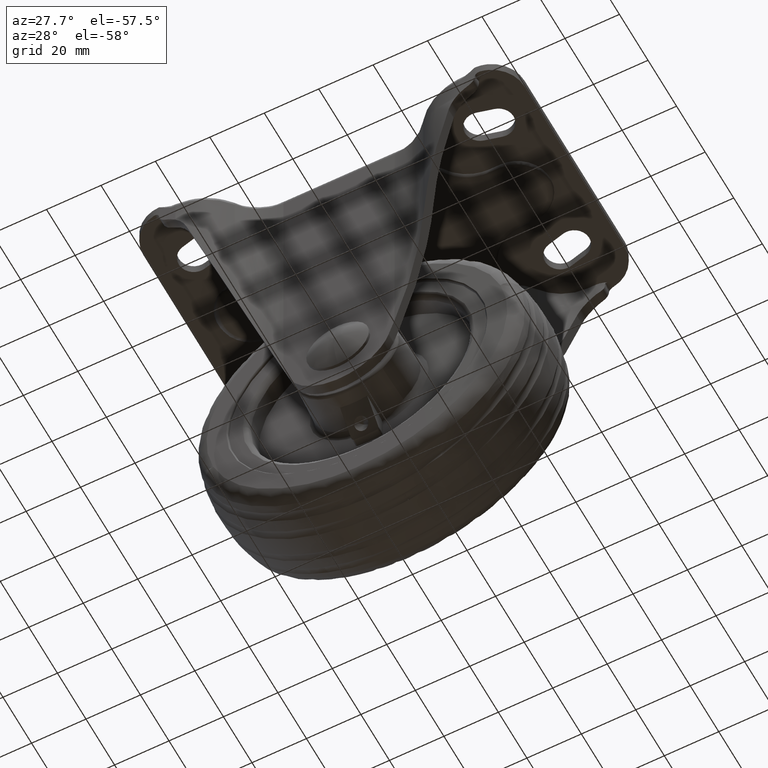
[diagram: clean part render]
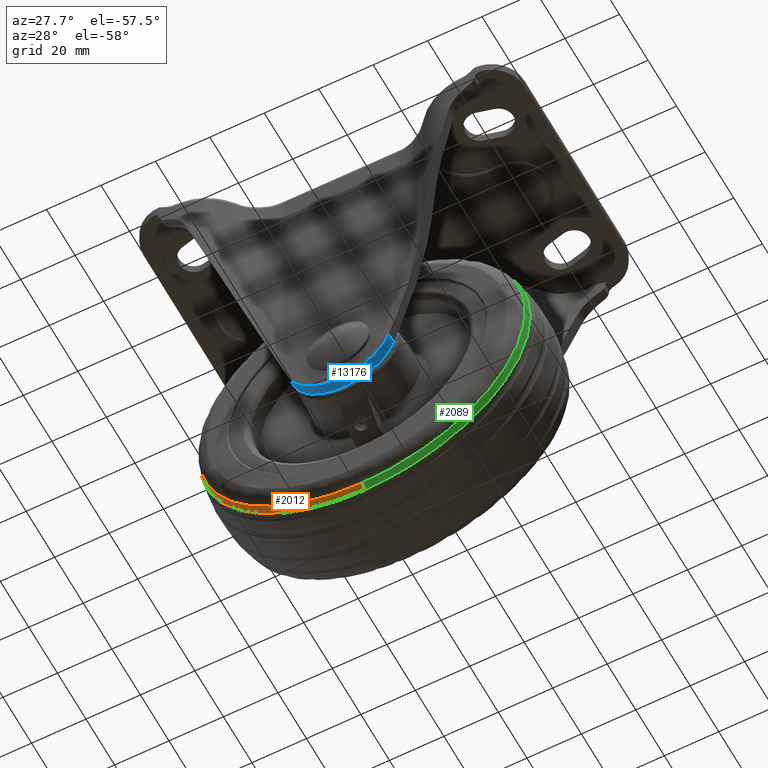
[diagram: same view with three faces highlighted in distinct colors, each labeled with its STEP entity id]
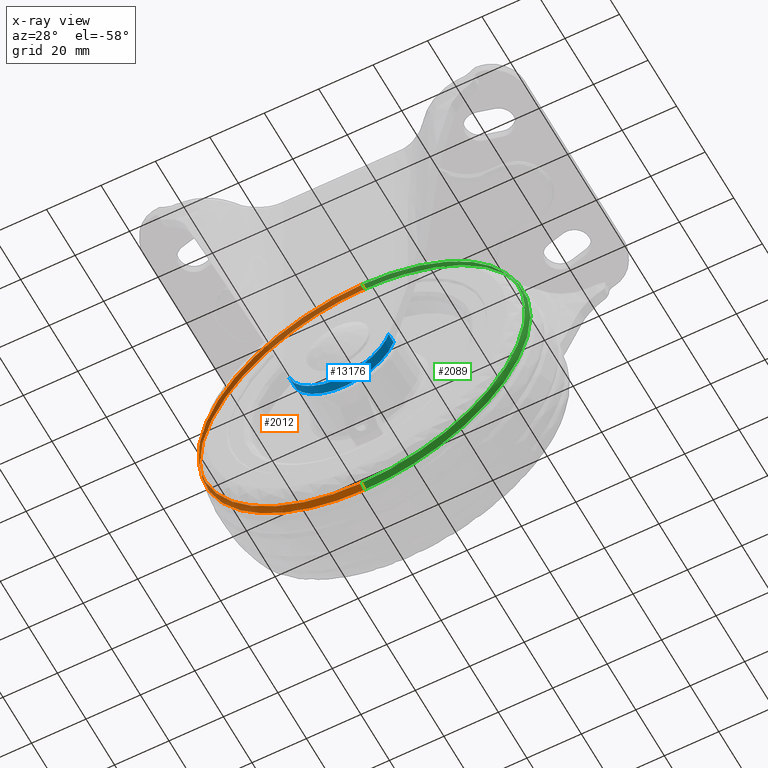
[diagram: x-ray of the same camera — body ghosted, the three highlighted faces saturated]
A machine part, auxiliary view with three faces highlighted in distinct colors.
The next image is the same camera in x-ray (body ghosted, the three faces saturated) — at least one of them is partly hidden behind the body in this view.
Their STEP definitions:

[orange] entity #2012 — the highlighted face is a freeform B-spline surface patch.
#870=CARTESIAN_POINT('',(-57.309701396753809,-15.555563985474510,-17.828048093688949));
#871=VERTEX_POINT('',#870);
#872=CARTESIAN_POINT('',(0.0,-15.555562097445740,-60.018676977603143));
#873=VERTEX_POINT('',#872);
#874=CARTESIAN_POINT('',(-57.309701396753823,-15.555563985474514,-17.828048093688952));
#875=CARTESIAN_POINT('',(-44.184938064518235,-15.555561877720871,-60.018676778073875));
#876=CARTESIAN_POINT('',(0.0,-15.555562097445740,-60.018676977603143));
#884=(BOUNDED_CURVE()B_SPLINE_CURVE(2,(#874,#875,#876),.UNSPECIFIED.,.F.,.U.)B_SPLINE_CURVE_WITH_KNOTS((3,3),(0.800541361933815,1.0),.UNSPECIFIED.)CURVE()GEOMETRIC_REPRESENTATION_ITEM()RATIONAL_B_SPLINE_CURVE((0.905515822879485,0.766319669906590,1.0))REPRESENTATION_ITEM(''));
#885=EDGE_CURVE('',#871,#873,#884,.T.);
#964=CARTESIAN_POINT('',(0.0,-15.555568719397860,60.018660200032343));
#965=VERTEX_POINT('',#964);
#966=CARTESIAN_POINT('',(0.0,-15.555568719397860,60.018660200032343));
#967=CARTESIAN_POINT('',(-60.018672283005969,-15.555568557639356,60.018660346923106));
#968=CARTESIAN_POINT('',(-60.018671641602950,-15.555565026938440,-0.000008042365408));
#969=CARTESIAN_POINT('',(-60.018671544141782,-15.555564490448594,-9.119841989985588));
#970=CARTESIAN_POINT('',(-57.309701396753823,-15.555563985474514,-17.828048093688952));
#978=(BOUNDED_CURVE()B_SPLINE_CURVE(2,(#966,#967,#968,#969,#970),.UNSPECIFIED.,.F.,.U.)B_SPLINE_CURVE_WITH_KNOTS((3,2,3),(0.500000000000000,0.750000000000000,0.800541361933815),.UNSPECIFIED.)CURVE()GEOMETRIC_REPRESENTATION_ITEM()RATIONAL_B_SPLINE_CURVE((1.0,0.707106781186547,1.0,0.940787111279957,0.905515822879485))REPRESENTATION_ITEM(''));
#979=EDGE_CURVE('',#965,#871,#978,.T.);
#1906=CARTESIAN_POINT('',(1.676857531117613,-15.671847417461962,59.980436698406024));
#1907=CARTESIAN_POINT('',(1.688715444674930,-14.386808067970680,60.404588961378067));
#1908=CARTESIAN_POINT('',(1.698612803734922,-13.080707687257204,60.758613067090337));
#1909=CARTESIAN_POINT('',(0.843311564780992,-15.671847417461960,59.980436698406031));
#1910=CARTESIAN_POINT('',(0.849275050319561,-14.386808067970687,60.404588961378082));
#1911=CARTESIAN_POINT('',(0.854252549720191,-13.080707687257201,60.758613067090330));
#1912=CARTESIAN_POINT('',(-59.980443698406098,-15.671847417461965,59.980436698406002));
#1913=CARTESIAN_POINT('',(-60.404595961378156,-14.386808067970684,60.404588961378060));
#1914=CARTESIAN_POINT('',(-60.758620067090419,-13.080707687257203,60.758613067090330));
#1915=CARTESIAN_POINT('',(-59.980443698406120,-15.671847417461960,-0.000007000000093));
#1916=CARTESIAN_POINT('',(-60.404595961378163,-14.386808067970689,-0.000007000000093));
#1917=CARTESIAN_POINT('',(-60.758620067090433,-13.080707687257199,-0.000007000000093));
#1918=CARTESIAN_POINT('',(-59.980443698406098,-15.671847417461965,-59.980450698406194));
#1919=CARTESIAN_POINT('',(-60.404595961378156,-14.386808067970684,-60.404602961378245));
#1920=CARTESIAN_POINT('',(-60.758620067090419,-13.080707687257203,-60.758627067090508));
#1921=CARTESIAN_POINT('',(0.843311564780992,-15.671847417461960,-59.980450698406216));
#1922=CARTESIAN_POINT('',(0.849275050319561,-14.386808067970687,-60.404602961378274));
#1923=CARTESIAN_POINT('',(0.854252549720192,-13.080707687257201,-60.758627067090536));
#1924=CARTESIAN_POINT('',(1.676857531117613,-15.671847417461962,-59.980450698406216));
#1925=CARTESIAN_POINT('',(1.688715444674931,-14.386808067970680,-60.404602961378266));
#1926=CARTESIAN_POINT('',(1.698612803734922,-13.080707687257204,-60.758627067090536));
#1934=(BOUNDED_SURFACE()B_SPLINE_SURFACE(2,2,((#1906,#1909,#1912,#1915,#1918,#1921,#1924),(#1907,#1910,#1913,#1916,#1919,#1922,#1925),(#1908,#1911,#1914,#1917,#1920,#1923,#1926)),.UNSPECIFIED.,.F.,.F.,.U.)B_SPLINE_SURFACE_WITH_KNOTS((3,3),(3,1,2,1,3),(0.0,2.716246469315215),(0.0,2.013363557029038,102.681541408480900,203.349719259932700,205.363082816961710),.UNSPECIFIED.)GEOMETRIC_REPRESENTATION_ITEM()RATIONAL_B_SPLINE_SURFACE(((0.944920162128056,0.939449046083460,0.660422127809055,0.933977930038864,0.660422127809055,0.939449046083460,0.944920162128056),(0.940826483046873,0.935379069526786,0.657560980002373,0.929931656006700,0.657560980002373,0.935379069526786,0.940826483046873),(0.937436701770327,0.932008915185376,0.655191799352844,0.926581128600424,0.655191799352844,0.932008915185376,0.937436701770327)))REPRESENTATION_ITEM('')SURFACE());
#1935=CARTESIAN_POINT('',(0.0,-13.199708151435310,60.726199874994848));
#1936=VERTEX_POINT('',#1935);
#1937=CARTESIAN_POINT('',(0.0,-15.555568719397863,60.018660200032329));
#1938=CARTESIAN_POINT('',(0.0,-14.386343167404268,60.401413712214094));
#1939=CARTESIAN_POINT('',(0.0,-13.199708151435310,60.726199874994848));
#1947=(BOUNDED_CURVE()B_SPLINE_CURVE(2,(#1937,#1938,#1939),.UNSPECIFIED.,.F.,.U.)B_SPLINE_CURVE_WITH_KNOTS((3,3),(0.415232148909040,0.428588197068798),.UNSPECIFIED.)CURVE()GEOMETRIC_REPRESENTATION_ITEM()RATIONAL_B_SPLINE_CURVE((0.933611857809621,0.929961821827633,0.926886886614779))REPRESENTATION_ITEM(''));
#1948=EDGE_CURVE('',#965,#1936,#1947,.T.);
#1949=ORIENTED_EDGE('',*,*,#1948,.T.);
#1950=CARTESIAN_POINT('',(-26.544384529150658,-13.199704461367940,54.617466599807223));
#1951=VERTEX_POINT('',#1950);
#1952=CARTESIAN_POINT('',(0.0,-13.199708151435310,60.726199874994848));
#1953=CARTESIAN_POINT('',(-13.975103146322892,-13.199706323453864,60.726201713858465));
#1954=CARTESIAN_POINT('',(-26.544384529150655,-13.199704461367933,54.617466599807216));
#1962=(BOUNDED_CURVE()B_SPLINE_CURVE(2,(#1952,#1953,#1954),.UNSPECIFIED.,.F.,.U.)B_SPLINE_CURVE_WITH_KNOTS((3,3),(0.500000000000000,0.574283292095696),.UNSPECIFIED.)CURVE()GEOMETRIC_REPRESENTATION_ITEM()RATIONAL_B_SPLINE_CURVE((1.0,0.912971709896127,0.877661402947253))REPRESENTATION_ITEM(''));
#1963=EDGE_CURVE('',#1936,#1951,#1962,.T.);
#1964=ORIENTED_EDGE('',*,*,#1963,.T.);
#1965=CARTESIAN_POINT('',(0.0,-13.199707473377821,-60.726214318866639));
#1966=VERTEX_POINT('',#1965);
#1967=CARTESIAN_POINT('',(-26.544384529150658,-13.199704461367940,54.617466599807223));
#1968=CARTESIAN_POINT('',(-30.369694593521778,-13.199704480433001,52.759132218741932));
#1969=CARTESIAN_POINT('',(-35.540180975934632,-13.199704523675830,49.534654072920709));
#1970=CARTESIAN_POINT('',(-42.174506754041722,-13.199704616729210,43.865103283890072));
#1971=CARTESIAN_POINT('',(-46.985236987366953,-13.199704709164781,38.735975465921960));
#1972=CARTESIAN_POINT('',(-51.346471077991382,-13.199704827264030,32.687153736930753));
#1973=CARTESIAN_POINT('',(-54.394112778532367,-13.199704940849880,27.193554426338569));
#1974=CARTESIAN_POINT('',(-56.794061831898127,-13.199705057929849,21.740438232915949));
#1975=CARTESIAN_POINT('',(-58.414786444879617,-13.199705165552650,16.893183885610959));
#1976=CARTESIAN_POINT('',(-59.792528758642412,-13.199705298116770,11.097364483583659));
#1977=CARTESIAN_POINT('',(-60.768726770842477,-13.199705459383850,4.244355133168685));
#1978=CARTESIAN_POINT('',(-60.813457033886571,-13.199705681340999,-4.820697929562879));
#1979=CARTESIAN_POINT('',(-59.414499649665409,-13.199705902836371,-13.459009073115530));
#1980=CARTESIAN_POINT('',(-57.170470616204867,-13.199706098073101,-20.787652672402618));
#1981=CARTESIAN_POINT('',(-54.851395055209032,-13.199706248810390,-26.280174441913609));
#1982=CARTESIAN_POINT('',(-51.707204136230906,-13.199706412827799,-32.081208863987712));
#1983=CARTESIAN_POINT('',(-47.513832305040431,-13.199706589938801,-38.119826350838593));
#1984=CARTESIAN_POINT('',(-42.535532835971722,-13.199706757156290,-43.533174874689742));
#1985=CARTESIAN_POINT('',(-37.458200135564532,-13.199706899694769,-47.912021837553453));
#1986=CARTESIAN_POINT('',(-31.468228663292340,-13.199707045423050,-52.163107031684007));
#1987=CARTESIAN_POINT('',(-23.897830902118120,-13.199707194638620,-56.109918868701577));
#1988=CARTESIAN_POINT('',(-15.702063805377680,-13.199707318092150,-58.829295616522792));
#1989=CARTESIAN_POINT('',(-7.867474210803899,-13.199707410170090,-60.371189735161202));
#1990=CARTESIAN_POINT('',(-2.870573135901629,-13.199707453496440,-60.726362126340163));
#1991=CARTESIAN_POINT('',(0.0,-13.199707473377821,-60.726214318866639));
#1992=B_SPLINE_CURVE_WITH_KNOTS('',3,(#1967,#1968,#1969,#1970,#1971,#1972,#1973,#1974,#1975,#1976,#1977,#1978,#1979,#1980,#1981,#1982,#1983,#1984,#1985,#1986,#1987,#1988,#1989,#1990,#1991),.UNSPECIFIED.,.F.,.U.,(4,1,1,1,1,1,1,1,1,1,1,1,1,1,1,1,1,1,1,1,1,1,4),(0.000000147702849,12.758224240768699,18.180470644006391,26.154389457101988,33.809321456366547,40.507438599336723,44.972790977531453,51.670859758568781,55.817268679293342,62.834362701482078,72.402802620863881,82.928478527075967,88.988621040217311,95.367686899131456,100.789984963907800,108.763889721922300,117.375702883376800,122.797946714984410,128.858124012384590,139.383710203294700,148.314454439624800,154.693606184192990,163.305312984405700),.UNSPECIFIED.);
#1993=EDGE_CURVE('',#1951,#1966,#1992,.T.);
#1994=ORIENTED_EDGE('',*,*,#1993,.T.);
#1995=CARTESIAN_POINT('',(0.0,-15.555562097445740,-60.018676977603143));
#1996=CARTESIAN_POINT('',(0.0,-14.386339469902328,-60.401429173128406));
#1997=CARTESIAN_POINT('',(0.0,-13.199707473377822,-60.726214318866639));
#2005=(BOUNDED_CURVE()B_SPLINE_CURVE(2,(#1995,#1996,#1997),.UNSPECIFIED.,.F.,.U.)B_SPLINE_CURVE_WITH_KNOTS((3,3),(0.415232187912603,0.428588201240975),.UNSPECIFIED.)CURVE()GEOMETRIC_REPRESENTATION_ITEM()RATIONAL_B_SPLINE_CURVE((0.933611836491283,0.929961811707721,0.926886884693675))REPRESENTATION_ITEM(''));
#2006=EDGE_CURVE('',#873,#1966,#2005,.T.);
#2007=ORIENTED_EDGE('',*,*,#2006,.F.);
#2008=ORIENTED_EDGE('',*,*,#885,.F.);
#2009=ORIENTED_EDGE('',*,*,#979,.F.);
#2010=EDGE_LOOP('',(#1949,#1964,#1994,#2007,#2008,#2009));
#2011=FACE_OUTER_BOUND('',#2010,.T.);
#2012=ADVANCED_FACE('',(#2011),#1934,.T.);

[blue] entity #13176 — the highlighted face is a freeform B-spline surface patch.
#9043=CARTESIAN_POINT('',(18.235148162409399,-28.0,-5.336606739771750));
#9044=VERTEX_POINT('',#9043);
#9050=CARTESIAN_POINT('',(-18.235149932094199,-28.0,-5.336600692767270));
#9051=VERTEX_POINT('',#9050);
#9052=CARTESIAN_POINT('',(18.235148162409399,-28.0,-5.336606739771750));
#9053=CARTESIAN_POINT('',(17.967083207267692,-28.000000000000011,-6.252699569000194));
#9054=CARTESIAN_POINT('',(17.225109490085210,-28.0,-8.223586000615756));
#9055=CARTESIAN_POINT('',(15.653622984778140,-28.000000000000039,-10.931480987157350));
#9056=CARTESIAN_POINT('',(13.605381935266660,-27.999999999999979,-13.379717194975290));
#9057=CARTESIAN_POINT('',(10.950430375960520,-28.000000000000039,-15.677631015794180));
#9058=CARTESIAN_POINT('',(7.832743298317771,-27.999999999999989,-17.452217873894462));
#9059=CARTESIAN_POINT('',(4.190882639856443,-28.000000000000028,-18.644769835400680));
#9060=CARTESIAN_POINT('',(0.956940715027339,-28.000000000000011,-19.069591150937200));
#9061=CARTESIAN_POINT('',(-2.612569748943453,-27.999999999999989,-18.926082087712430));
#9062=CARTESIAN_POINT('',(-5.985703622584666,-28.000000000000021,-18.168189653696221));
#9063=CARTESIAN_POINT('',(-9.658042052306881,-28.000000000000021,-16.519321172546540));
#9064=CARTESIAN_POINT('',(-12.561064190524590,-27.999999999999961,-14.411855675502711));
#9065=CARTESIAN_POINT('',(-14.914673845368590,-28.000000000000082,-11.894641191250070));
#9066=CARTESIAN_POINT('',(-16.850399995200512,-27.999999999999758,-9.042014346671408));
#9067=CARTESIAN_POINT('',(-17.824368359387890,-28.000000000000451,-6.741381174870568));
#9068=CARTESIAN_POINT('',(-18.235149932094199,-28.0,-5.336600692767270));
#9069=B_SPLINE_CURVE_WITH_KNOTS('',3,(#9052,#9053,#9054,#9055,#9056,#9057,#9058,#9059,#9060,#9061,#9062,#9063,#9064,#9065,#9066,#9067,#9068),.UNSPECIFIED.,.F.,.U.,(4,1,1,1,1,1,1,1,1,1,1,1,1,1,4),(0.000000219912607,2.863537578900633,6.299867112990945,9.354320155832291,12.408832105659950,16.799656895131630,20.045098916458620,23.863233478931360,26.535733536046148,30.735704285577601,34.172004525197572,38.562824388083712,41.426428774979257,44.480945806606577,48.871694161207643),.UNSPECIFIED.);
#9070=EDGE_CURVE('',#9044,#9051,#9069,.T.);
#13120=CARTESIAN_POINT('',(-18.281025628846500,-31.587499999999999,-5.177267808164577));
#13121=CARTESIAN_POINT('',(-18.281025628846500,-27.910312500000000,-5.177267808164577));
#13122=CARTESIAN_POINT('',(-14.272356587573316,-31.587499999999995,-19.331950199813608));
#13123=CARTESIAN_POINT('',(-14.272356587573316,-27.910312499999993,-19.331950199813608));
#13124=CARTESIAN_POINT('',(0.435156341010135,-31.587499999999999,-18.995016161058629));
#13125=CARTESIAN_POINT('',(0.435156341010135,-27.910312500000000,-18.995016161058629));
#13126=CARTESIAN_POINT('',(15.142669269593588,-31.587499999999995,-18.658082122303639));
#13127=CARTESIAN_POINT('',(15.142669269593588,-27.910312499999993,-18.658082122303639));
#13128=CARTESIAN_POINT('',(18.498934521699368,-31.587499999999999,-4.334676638675507));
#13129=CARTESIAN_POINT('',(18.498934521699368,-27.910312500000000,-4.334676638675507));
#13137=(BOUNDED_SURFACE()B_SPLINE_SURFACE(1,2,((#13120,#13122,#13124,#13126,#13128),(#13121,#13123,#13125,#13127,#13129)),.UNSPECIFIED.,.F.,.F.,.U.)B_SPLINE_SURFACE_WITH_KNOTS((2,2),(3,2,3),(0.0,3.677187500000006),(0.0,25.983573012791769,51.967146025583538),.UNSPECIFIED.)GEOMETRIC_REPRESENTATION_ITEM()RATIONAL_B_SPLINE_SURFACE(((1.0,0.790689573743843,1.0,0.790689573743843,1.0),(1.0,0.790689573743843,1.0,0.790689573743843,1.0)))REPRESENTATION_ITEM('')SURFACE());
#13138=CARTESIAN_POINT('',(-18.235149932094199,-31.500000000000000,-5.336600692767270));
#13139=VERTEX_POINT('',#13138);
#13140=CARTESIAN_POINT('',(18.235148162409399,-31.500000000000000,-5.336606739771750));
#13141=VERTEX_POINT('',#13140);
#13142=CARTESIAN_POINT('',(-18.235149932094199,-31.500000000000000,-5.336600692767270));
#13143=CARTESIAN_POINT('',(-17.967087515909270,-31.500000000000039,-6.252694110689194));
#13144=CARTESIAN_POINT('',(-17.225112594543749,-31.499999999999911,-8.223585253871157));
#13145=CARTESIAN_POINT('',(-15.749827790719801,-31.500000000000082,-10.765674029452400));
#13146=CARTESIAN_POINT('',(-13.941784169241370,-31.499999999999979,-12.994169864258041));
#13147=CARTESIAN_POINT('',(-11.987909808096729,-31.500000000000039,-14.827440552413821));
#13148=CARTESIAN_POINT('',(-9.264089500707369,-31.499999999999989,-16.722938043539319));
#13149=CARTESIAN_POINT('',(-5.808341457058003,-31.500000000000021,-18.253742704163511));
#13150=CARTESIAN_POINT('',(-2.167946989201751,-31.500000000000000,-18.975999867271799));
#13151=CARTESIAN_POINT('',(1.339950511867920,-31.499999999999989,-19.046508700421949));
#13152=CARTESIAN_POINT('',(4.311754708546127,-31.500000000000011,-18.595207403861298));
#13153=CARTESIAN_POINT('',(7.402549195292067,-31.499999999999911,-17.582871489125051));
#13154=CARTESIAN_POINT('',(10.361594024547820,-31.500000000000551,-16.071667321497461));
#13155=CARTESIAN_POINT('',(12.772583893723450,-31.500000000000021,-14.168693231463170));
#13156=CARTESIAN_POINT('',(14.730395186433601,-31.499999999999901,-12.074903724945340));
#13157=CARTESIAN_POINT('',(16.651613491766572,-31.500000000000249,-9.447832445938596));
#13158=CARTESIAN_POINT('',(17.753107708336788,-31.499999999999609,-6.985785644312550));
#13159=CARTESIAN_POINT('',(18.235148162409399,-31.500000000000000,-5.336606739771750));
#13160=B_SPLINE_CURVE_WITH_KNOTS('',3,(#13142,#13143,#13144,#13145,#13146,#13147,#13148,#13149,#13150,#13151,#13152,#13153,#13154,#13155,#13156,#13157,#13158,#13159),.UNSPECIFIED.,.F.,.U.,(4,1,1,1,1,1,1,1,1,1,1,1,1,1,1,4),(0.000000219925333,2.863537578913039,6.299867113002762,8.781617330841385,11.454304488330580,14.317896508408939,18.708706227572488,22.717784859718510,25.390298393162229,29.208402281330581,31.690218257414610,35.126525973395132,39.135562011522360,40.853726555679593,43.717328074401593,48.871694161207621),.UNSPECIFIED.);
#13161=EDGE_CURVE('',#13139,#13141,#13160,.T.);
#13162=ORIENTED_EDGE('',*,*,#13161,.F.);
#13163=CARTESIAN_POINT('',(-18.235149932094199,-31.500000000000000,-5.336600692767270));
#13164=CARTESIAN_POINT('',(-18.235149932094199,-28.0,-5.336600692767270));
#13165=QUASI_UNIFORM_CURVE('',1,(#13163,#13164),.UNSPECIFIED.,.F.,.U.);
#13166=EDGE_CURVE('',#13139,#9051,#13165,.T.);
#13167=ORIENTED_EDGE('',*,*,#13166,.T.);
#13168=ORIENTED_EDGE('',*,*,#9070,.F.);
#13169=CARTESIAN_POINT('',(18.235148162409399,-31.500000000000000,-5.336606739771750));
#13170=CARTESIAN_POINT('',(18.235148162409399,-28.0,-5.336606739771750));
#13171=QUASI_UNIFORM_CURVE('',1,(#13169,#13170),.UNSPECIFIED.,.F.,.U.);
#13172=EDGE_CURVE('',#13141,#9044,#13171,.T.);
#13173=ORIENTED_EDGE('',*,*,#13172,.F.);
#13174=EDGE_LOOP('',(#13162,#13167,#13168,#13173));
#13175=FACE_OUTER_BOUND('',#13174,.T.);
#13176=ADVANCED_FACE('',(#13175),#13137,.T.);

[green] entity #2089 — the highlighted face is a freeform B-spline surface patch.
#872=CARTESIAN_POINT('',(0.0,-15.555562097445740,-60.018676977603143));
#873=VERTEX_POINT('',#872);
#887=CARTESIAN_POINT('',(57.309700687050857,-15.555565979248520,17.828033872912659));
#888=VERTEX_POINT('',#887);
#889=CARTESIAN_POINT('',(0.0,-15.555562097445740,-60.018676977603143));
#890=CARTESIAN_POINT('',(60.018672311758465,-15.555561945544332,-60.018677115549494));
#891=CARTESIAN_POINT('',(60.018671709411421,-15.555565050184910,-0.000008714111365));
#892=CARTESIAN_POINT('',(60.018671617884806,-15.555565521934973,9.119826592074881));
#893=CARTESIAN_POINT('',(57.309700687050864,-15.555565979248520,17.828033872912656));
#901=(BOUNDED_CURVE()B_SPLINE_CURVE(2,(#889,#890,#891,#892,#893),.UNSPECIFIED.,.F.,.U.)B_SPLINE_CURVE_WITH_KNOTS((3,2,3),(0.0,0.250000000000000,0.300541369007432),.UNSPECIFIED.)CURVE()GEOMETRIC_REPRESENTATION_ITEM()RATIONAL_B_SPLINE_CURVE((1.0,0.707106781186547,1.0,0.940787102992699,0.905515813006558))REPRESENTATION_ITEM(''));
#902=EDGE_CURVE('',#873,#888,#901,.T.);
#964=CARTESIAN_POINT('',(0.0,-15.555568719397860,60.018660200032343));
#965=VERTEX_POINT('',#964);
#985=CARTESIAN_POINT('',(57.309700687050864,-15.555565979248520,17.828033872912656));
#986=CARTESIAN_POINT('',(44.184936058764031,-15.555568513062369,60.018660012652724));
#987=CARTESIAN_POINT('',(0.0,-15.555568719397860,60.018660200032343));
#995=(BOUNDED_CURVE()B_SPLINE_CURVE(2,(#985,#986,#987),.UNSPECIFIED.,.F.,.U.)B_SPLINE_CURVE_WITH_KNOTS((3,3),(0.300541369007432,0.500000000000000),.UNSPECIFIED.)CURVE()GEOMETRIC_REPRESENTATION_ITEM()RATIONAL_B_SPLINE_CURVE((0.905515813006558,0.766319678193849,1.0))REPRESENTATION_ITEM(''));
#996=EDGE_CURVE('',#888,#965,#995,.T.);
#1935=CARTESIAN_POINT('',(0.0,-13.199708151435310,60.726199874994848));
#1936=VERTEX_POINT('',#1935);
#1937=CARTESIAN_POINT('',(0.0,-15.555568719397863,60.018660200032329));
#1938=CARTESIAN_POINT('',(0.0,-14.386343167404268,60.401413712214094));
#1939=CARTESIAN_POINT('',(0.0,-13.199708151435310,60.726199874994848));
#1947=(BOUNDED_CURVE()B_SPLINE_CURVE(2,(#1937,#1938,#1939),.UNSPECIFIED.,.F.,.U.)B_SPLINE_CURVE_WITH_KNOTS((3,3),(0.415232148909040,0.428588197068798),.UNSPECIFIED.)CURVE()GEOMETRIC_REPRESENTATION_ITEM()RATIONAL_B_SPLINE_CURVE((0.933611857809621,0.929961821827633,0.926886886614779))REPRESENTATION_ITEM(''));
#1948=EDGE_CURVE('',#965,#1936,#1947,.T.);
#1965=CARTESIAN_POINT('',(0.0,-13.199707473377821,-60.726214318866639));
#1966=VERTEX_POINT('',#1965);
#1995=CARTESIAN_POINT('',(0.0,-15.555562097445740,-60.018676977603143));
#1996=CARTESIAN_POINT('',(0.0,-14.386339469902328,-60.401429173128406));
#1997=CARTESIAN_POINT('',(0.0,-13.199707473377822,-60.726214318866639));
#2005=(BOUNDED_CURVE()B_SPLINE_CURVE(2,(#1995,#1996,#1997),.UNSPECIFIED.,.F.,.U.)B_SPLINE_CURVE_WITH_KNOTS((3,3),(0.415232187912603,0.428588201240975),.UNSPECIFIED.)CURVE()GEOMETRIC_REPRESENTATION_ITEM()RATIONAL_B_SPLINE_CURVE((0.933611836491283,0.929961811707721,0.926886884693675))REPRESENTATION_ITEM(''));
#2006=EDGE_CURVE('',#873,#1966,#2005,.T.);
#2013=CARTESIAN_POINT('',(-1.676857531117613,-15.671847417461962,-59.980450698406216));
#2014=CARTESIAN_POINT('',(-1.688715444674930,-14.386808067970680,-60.404602961378266));
#2015=CARTESIAN_POINT('',(-1.698612803734922,-13.080707687257204,-60.758627067090536));
#2016=CARTESIAN_POINT('',(-0.843311564780992,-15.671847417461960,-59.980450698406216));
#2017=CARTESIAN_POINT('',(-0.849275050319561,-14.386808067970687,-60.404602961378274));
#2018=CARTESIAN_POINT('',(-0.854252549720191,-13.080707687257201,-60.758627067090536));
#2019=CARTESIAN_POINT('',(59.980443698406098,-15.671847417461965,-59.980450698406194));
#2020=CARTESIAN_POINT('',(60.404595961378156,-14.386808067970684,-60.404602961378245));
#2021=CARTESIAN_POINT('',(60.758620067090419,-13.080707687257203,-60.758627067090508));
#2022=CARTESIAN_POINT('',(59.980443698406120,-15.671847417461960,-0.000007000000093));
#2023=CARTESIAN_POINT('',(60.404595961378163,-14.386808067970689,-0.000007000000093));
#2024=CARTESIAN_POINT('',(60.758620067090433,-13.080707687257199,-0.000007000000093));
#2025=CARTESIAN_POINT('',(59.980443698406098,-15.671847417461965,59.980436698406002));
#2026=CARTESIAN_POINT('',(60.404595961378156,-14.386808067970684,60.404588961378060));
#2027=CARTESIAN_POINT('',(60.758620067090419,-13.080707687257203,60.758613067090330));
#2028=CARTESIAN_POINT('',(-0.843311564780992,-15.671847417461960,59.980436698406031));
#2029=CARTESIAN_POINT('',(-0.849275050319561,-14.386808067970687,60.404588961378082));
#2030=CARTESIAN_POINT('',(-0.854252549720192,-13.080707687257201,60.758613067090330));
#2031=CARTESIAN_POINT('',(-1.676857531117613,-15.671847417461962,59.980436698406024));
#2032=CARTESIAN_POINT('',(-1.688715444674931,-14.386808067970680,60.404588961378067));
#2033=CARTESIAN_POINT('',(-1.698612803734922,-13.080707687257204,60.758613067090337));
#2041=(BOUNDED_SURFACE()B_SPLINE_SURFACE(2,2,((#2013,#2016,#2019,#2022,#2025,#2028,#2031),(#2014,#2017,#2020,#2023,#2026,#2029,#2032),(#2015,#2018,#2021,#2024,#2027,#2030,#2033)),.UNSPECIFIED.,.F.,.F.,.U.)B_SPLINE_SURFACE_WITH_KNOTS((3,3),(3,1,2,1,3),(0.0,2.716246469315215),(0.0,2.013363557029038,102.681541408480900,203.349719259932700,205.363082816961710),.UNSPECIFIED.)GEOMETRIC_REPRESENTATION_ITEM()RATIONAL_B_SPLINE_SURFACE(((0.944920162128056,0.939449046083460,0.660422127809055,0.933977930038864,0.660422127809055,0.939449046083460,0.944920162128056),(0.940826483046873,0.935379069526786,0.657560980002373,0.929931656006700,0.657560980002373,0.935379069526786,0.940826483046873),(0.937436701770327,0.932008915185376,0.655191799352844,0.926581128600424,0.655191799352844,0.932008915185376,0.937436701770327)))REPRESENTATION_ITEM('')SURFACE());
#2042=ORIENTED_EDGE('',*,*,#1948,.F.);
#2043=ORIENTED_EDGE('',*,*,#996,.F.);
#2044=ORIENTED_EDGE('',*,*,#902,.F.);
#2045=ORIENTED_EDGE('',*,*,#2006,.T.);
#2046=CARTESIAN_POINT('',(26.544384588935628,-13.199704086156370,-54.617480722820460));
#2047=VERTEX_POINT('',#2046);
#2048=CARTESIAN_POINT('',(0.0,-13.199707473377821,-60.726214318866639));
#2049=CARTESIAN_POINT('',(13.975103191112080,-13.199705762714835,-60.726216039706273));
#2050=CARTESIAN_POINT('',(26.544384588935628,-13.199704086156373,-54.617480722820467));
#2058=(BOUNDED_CURVE()B_SPLINE_CURVE(2,(#2048,#2049,#2050),.UNSPECIFIED.,.F.,.U.)B_SPLINE_CURVE_WITH_KNOTS((3,3),(0.0,0.074283292591408),.UNSPECIFIED.)CURVE()GEOMETRIC_REPRESENTATION_ITEM()RATIONAL_B_SPLINE_CURVE((1.0,0.912971709315364,0.877661402475983))REPRESENTATION_ITEM(''));
#2059=EDGE_CURVE('',#1966,#2047,#2058,.T.);
#2060=ORIENTED_EDGE('',*,*,#2059,.T.);
#2061=CARTESIAN_POINT('',(26.544384588935628,-13.199704086156370,-54.617480722820460));
#2062=CARTESIAN_POINT('',(30.369721144626730,-13.199704124080590,-52.759175539842012));
#2063=CARTESIAN_POINT('',(35.812249143232883,-13.199704203364760,-49.364888863124243));
#2064=CARTESIAN_POINT('',(43.127927608196437,-13.199704370332750,-43.013024445601197));
#2065=CARTESIAN_POINT('',(48.273356571518413,-13.199704534253790,-37.168257245572590));
#2066=CARTESIAN_POINT('',(52.844061255481193,-13.199704738739751,-30.232073385138101));
#2067=CARTESIAN_POINT('',(56.386308545608010,-13.199704957551900,-23.068974955337929));
#2068=CARTESIAN_POINT('',(58.801165750989078,-13.199705187816461,-15.783108965689159));
#2069=CARTESIAN_POINT('',(60.111119648278446,-13.199705401325010,-9.205892630233542));
#2070=CARTESIAN_POINT('',(60.700541485604226,-13.199705586821359,-3.596984076671868));
#2071=CARTESIAN_POINT('',(60.805720713128807,-13.199705816037000,3.214187947240565));
#2072=CARTESIAN_POINT('',(59.852139404783117,-13.199706112013621,11.799941589197710));
#2073=CARTESIAN_POINT('',(57.291966306414530,-13.199706433587940,20.835487477545790));
#2074=CARTESIAN_POINT('',(53.750762008577908,-13.199706718246579,28.588918924992200));
#2075=CARTESIAN_POINT('',(49.340210832795833,-13.199706988661861,35.753383897476162));
#2076=CARTESIAN_POINT('',(44.428796570103160,-13.199707219875069,41.660213187832063));
#2077=CARTESIAN_POINT('',(38.565032176946637,-13.199707440724000,47.077061973382683));
#2078=CARTESIAN_POINT('',(32.207799086666057,-13.199707639357269,51.740951703054890));
#2079=CARTESIAN_POINT('',(24.378565594057100,-13.199707829654850,55.875142160347700));
#2080=CARTESIAN_POINT('',(15.515825848902370,-13.199707990755090,58.945847366193213));
#2081=CARTESIAN_POINT('',(7.442238420171028,-13.199708093763260,60.446883659379452));
#2082=CARTESIAN_POINT('',(2.126330643144412,-13.199708137646100,60.726203293508540));
#2083=CARTESIAN_POINT('',(0.0,-13.199708151435310,60.726199874994848));
#2084=B_SPLINE_CURVE_WITH_KNOTS('',3,(#2061,#2062,#2063,#2064,#2065,#2066,#2067,#2068,#2069,#2070,#2071,#2072,#2073,#2074,#2075,#2076,#2077,#2078,#2079,#2080,#2081,#2082,#2083),.UNSPECIFIED.,.F.,.U.,(4,1,1,1,1,1,1,1,1,1,1,1,1,1,1,1,1,1,1,1,4),(0.000000147308668,12.758224209227420,19.137340326010360,29.024974283009868,36.042006709188001,44.015959603145831,52.946648935800340,59.006805878541101,64.110103596839721,69.851149163114769,79.419915845625653,89.945464448736615,97.919343209392025,104.936391775234990,115.143005671010200,120.884226527024690,128.858123697335400,138.745762983694500,147.357625691882790,156.926303362748910,163.305312585257810),.UNSPECIFIED.);
#2085=EDGE_CURVE('',#2047,#1936,#2084,.T.);
#2086=ORIENTED_EDGE('',*,*,#2085,.T.);
#2087=EDGE_LOOP('',(#2042,#2043,#2044,#2045,#2060,#2086));
#2088=FACE_OUTER_BOUND('',#2087,.T.);
#2089=ADVANCED_FACE('',(#2088),#2041,.T.);